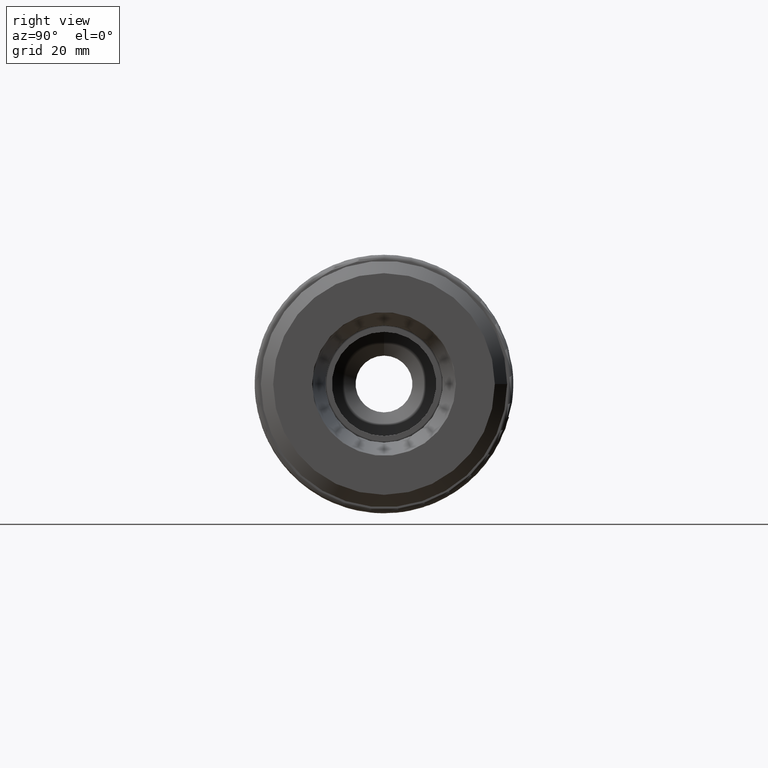
[diagram: clean part render]
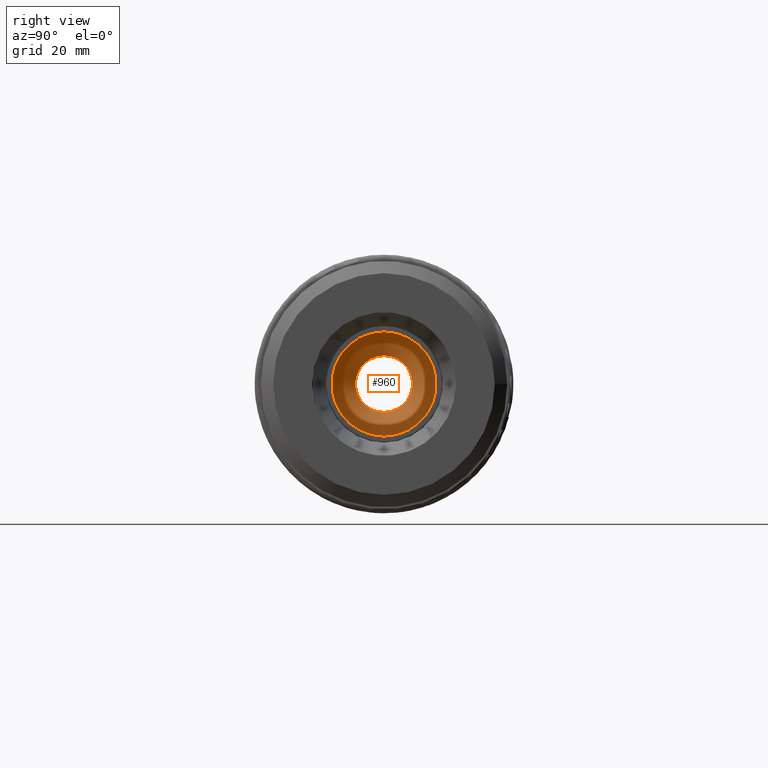
[diagram: same view with one face highlighted and labeled with its STEP entity id]
A machine part, right view. The second image highlights one B-rep face of the part: STEP entity #960.
In plain terms, the highlighted conical surface has half-angle 59 deg.
Its self-contained STEP definition (entity closure, byte-faithful):
#121=FACE_OUTER_BOUND('',#184,.T.);
#184=EDGE_LOOP('',(#694,#695,#696,#697,#698));
#248=LINE('',#1596,#300);
#300=VECTOR('',#1285,6.3440505);
#362=CIRCLE('',#1112,12.688101);
#363=CIRCLE('',#1113,6.9175);
#364=CIRCLE('',#1114,6.9175);
#432=VERTEX_POINT('',#1593);
#433=VERTEX_POINT('',#1595);
#434=VERTEX_POINT('',#1597);
#532=EDGE_CURVE('',#432,#432,#362,.T.);
#533=EDGE_CURVE('',#432,#433,#248,.T.);
#534=EDGE_CURVE('',#434,#433,#363,.T.);
#535=EDGE_CURVE('',#433,#434,#364,.T.);
#694=ORIENTED_EDGE('',*,*,#532,.T.);
#695=ORIENTED_EDGE('',*,*,#533,.T.);
#696=ORIENTED_EDGE('',*,*,#534,.F.);
#697=ORIENTED_EDGE('',*,*,#535,.F.);
#698=ORIENTED_EDGE('',*,*,#533,.F.);
#940=CONICAL_SURFACE('',#1111,6.3440505,1.02974425867665);
#960=ADVANCED_FACE('',(#121),#940,.F.);
#1111=AXIS2_PLACEMENT_3D('',#1592,#1281,#1282);
#1112=AXIS2_PLACEMENT_3D('',#1594,#1283,#1284);
#1113=AXIS2_PLACEMENT_3D('',#1598,#1286,#1287);
#1114=AXIS2_PLACEMENT_3D('',#1599,#1288,#1289);
#1281=DIRECTION('center_axis',(1.,0.,0.));
#1282=DIRECTION('ref_axis',(0.,0.,-1.));
#1283=DIRECTION('center_axis',(1.,0.,0.));
#1284=DIRECTION('ref_axis',(0.,0.,-1.));
#1285=DIRECTION('',(-0.515038074910054,1.04972719113862E-16,-0.857167300702112));
#1286=DIRECTION('center_axis',(1.,0.,0.));
#1287=DIRECTION('ref_axis',(0.,0.,1.));
#1288=DIRECTION('center_axis',(1.,0.,0.));
#1289=DIRECTION('ref_axis',(0.,0.,1.));
#1592=CARTESIAN_POINT('Origin',(-31.9118901105721,0.,0.));
#1593=CARTESIAN_POINT('',(-28.1,-1.55384422769083E-15,12.688101));
#1594=CARTESIAN_POINT('Origin',(-28.1,0.,0.));
#1595=CARTESIAN_POINT('',(-31.5673268890211,-8.47149423310182E-16,6.9175));
#1596=CARTESIAN_POINT('',(-31.9118901105721,-7.76922113845417E-16,6.3440505));
#1597=CARTESIAN_POINT('',(-31.5673268890211,8.47149423310182E-16,-6.9175));
#1598=CARTESIAN_POINT('Origin',(-31.5673268890211,0.,0.));
#1599=CARTESIAN_POINT('Origin',(-31.5673268890211,0.,0.));